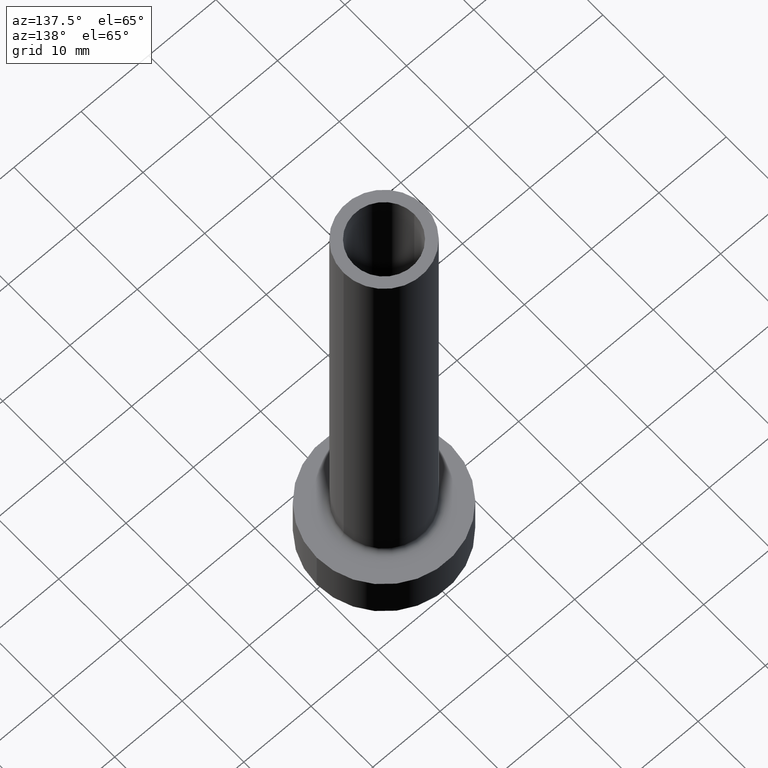
[diagram: clean part render]
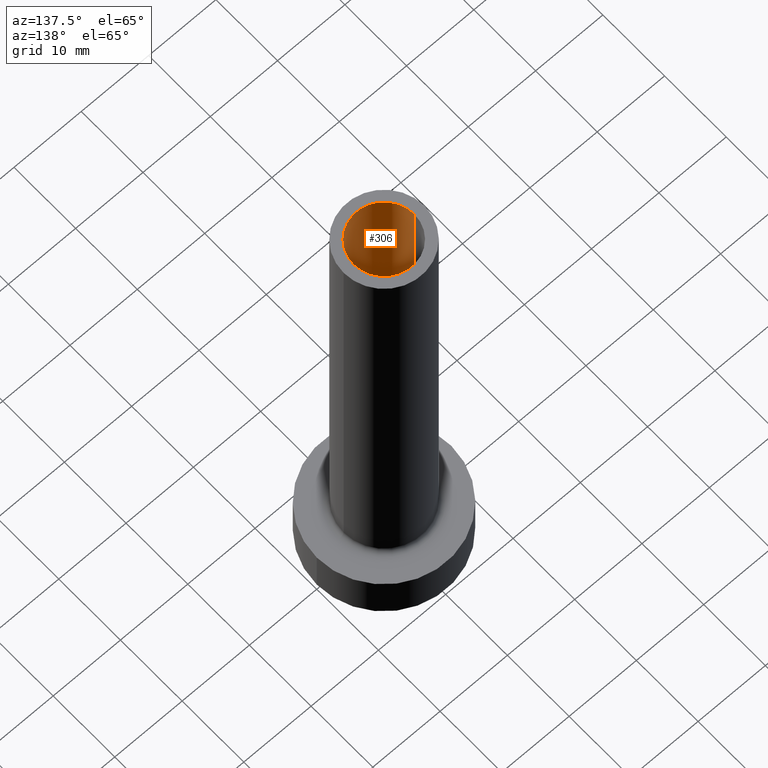
[diagram: same view with one face highlighted and labeled with its STEP entity id]
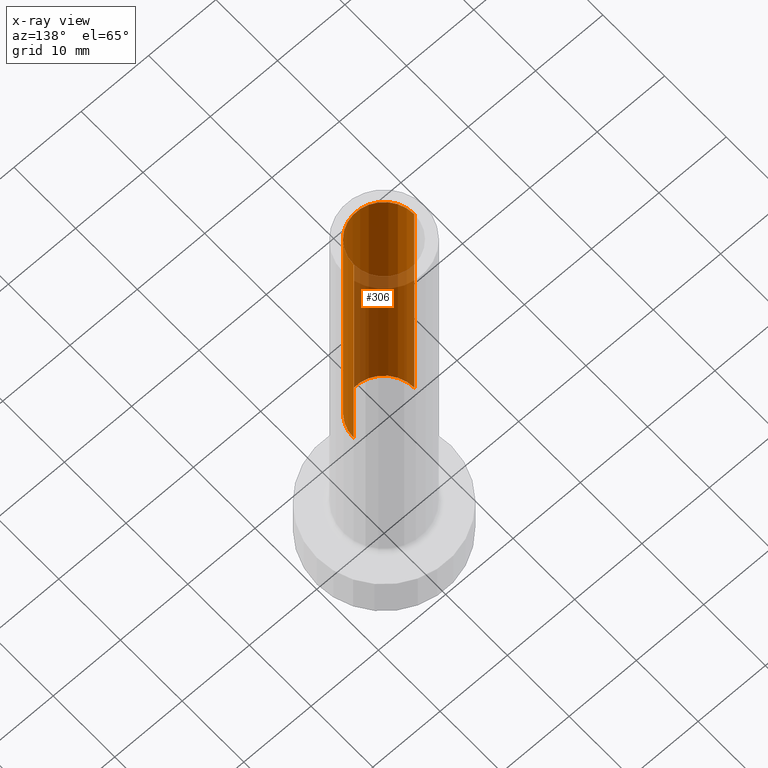
[diagram: x-ray of the same camera — body ghosted, the highlighted face saturated]
A machine part, auxiliary view. The second image highlights one B-rep face of the part: STEP entity #306.
The next image is the same camera in x-ray: the body ghosted, the highlighted face saturated — about 51% of this face is hidden behind the body in this view.
In plain terms, the highlighted cylindrical surface (partial cylindrical patch) has radius 4.5 mm, axis along (0, 0, -1).
Its self-contained STEP definition (entity closure, byte-faithful):
#5 = DIRECTION ( 'NONE',  ( -1.000000000000000000, 0.000000000000000000, 0.000000000000000000 ) ) ;
#7 = EDGE_CURVE ( 'NONE', #74, #300, #407, .T. ) ;
#44 = DIRECTION ( 'NONE',  ( 0.000000000000000000, 0.000000000000000000, -1.000000000000000000 ) ) ;
#48 = CARTESIAN_POINT ( 'NONE',  ( 0.000000000000000000, 0.000000000000000000, 30.00000000000001421 ) ) ;
#49 = DIRECTION ( 'NONE',  ( 0.000000000000000000, 0.000000000000000000, -1.000000000000000000 ) ) ;
#73 = AXIS2_PLACEMENT_3D ( 'NONE', #48, #395, #191 ) ;
#74 = VERTEX_POINT ( 'NONE', #240 ) ;
#75 = FACE_OUTER_BOUND ( 'NONE', #378, .T. ) ;
#84 = EDGE_CURVE ( 'NONE', #300, #172, #204, .T. ) ;
#106 = CARTESIAN_POINT ( 'NONE',  ( 0.000000000000000000, 0.000000000000000000, 75.00000000000001421 ) ) ;
#129 = VECTOR ( 'NONE', #49, 1000.000000000000000 ) ;
#136 = VERTEX_POINT ( 'NONE', #419 ) ;
#159 = LINE ( 'NONE', #361, #129 ) ;
#171 = EDGE_CURVE ( 'NONE', #136, #172, #332, .T. ) ;
#172 = VERTEX_POINT ( 'NONE', #292 ) ;
#177 = ORIENTED_EDGE ( 'NONE', *, *, #84, .T. ) ;
#188 = ORIENTED_EDGE ( 'NONE', *, *, #295, .F. ) ;
#191 = DIRECTION ( 'NONE',  ( 1.000000000000000000, 0.000000000000000000, 0.000000000000000000 ) ) ;
#204 = LINE ( 'NONE', #343, #353 ) ;
#222 = CYLINDRICAL_SURFACE ( 'NONE', #434, 4.500000000000000000 ) ;
#240 = CARTESIAN_POINT ( 'NONE',  ( -4.500000000000000000, 0.000000000000000000, 75.00000000000001421 ) ) ;
#266 = AXIS2_PLACEMENT_3D ( 'NONE', #106, #425, #272 ) ;
#271 = ORIENTED_EDGE ( 'NONE', *, *, #171, .F. ) ;
#272 = DIRECTION ( 'NONE',  ( 1.000000000000000000, 0.000000000000000000, 0.000000000000000000 ) ) ;
#292 = CARTESIAN_POINT ( 'NONE',  ( 4.500000000000000000, 5.510910596163087583E-16, 30.00000000000001421 ) ) ;
#295 = EDGE_CURVE ( 'NONE', #74, #136, #159, .T. ) ;
#300 = VERTEX_POINT ( 'NONE', #392 ) ;
#306 = ADVANCED_FACE ( 'NONE', ( #75 ), #222, .F. ) ;
#315 = DIRECTION ( 'NONE',  ( 0.000000000000000000, 0.000000000000000000, -1.000000000000000000 ) ) ;
#332 = CIRCLE ( 'NONE', #73, 4.500000000000000000 ) ;
#343 = CARTESIAN_POINT ( 'NONE',  ( 4.500000000000000000, 5.510910596163087583E-16, 75.00000000000001421 ) ) ;
#353 = VECTOR ( 'NONE', #315, 1000.000000000000000 ) ;
#356 = CARTESIAN_POINT ( 'NONE',  ( 0.000000000000000000, 0.000000000000000000, 75.00000000000001421 ) ) ;
#361 = CARTESIAN_POINT ( 'NONE',  ( -4.500000000000000000, 0.000000000000000000, 75.00000000000001421 ) ) ;
#378 = EDGE_LOOP ( 'NONE', ( #424, #177, #271, #188 ) ) ;
#392 = CARTESIAN_POINT ( 'NONE',  ( 4.500000000000000000, 5.510910596163087583E-16, 75.00000000000001421 ) ) ;
#395 = DIRECTION ( 'NONE',  ( 0.000000000000000000, 0.000000000000000000, 1.000000000000000000 ) ) ;
#407 = CIRCLE ( 'NONE', #266, 4.500000000000000000 ) ;
#419 = CARTESIAN_POINT ( 'NONE',  ( -4.500000000000000000, 0.000000000000000000, 30.00000000000001421 ) ) ;
#424 = ORIENTED_EDGE ( 'NONE', *, *, #7, .T. ) ;
#425 = DIRECTION ( 'NONE',  ( 0.000000000000000000, 0.000000000000000000, 1.000000000000000000 ) ) ;
#434 = AXIS2_PLACEMENT_3D ( 'NONE', #356, #44, #5 ) ;